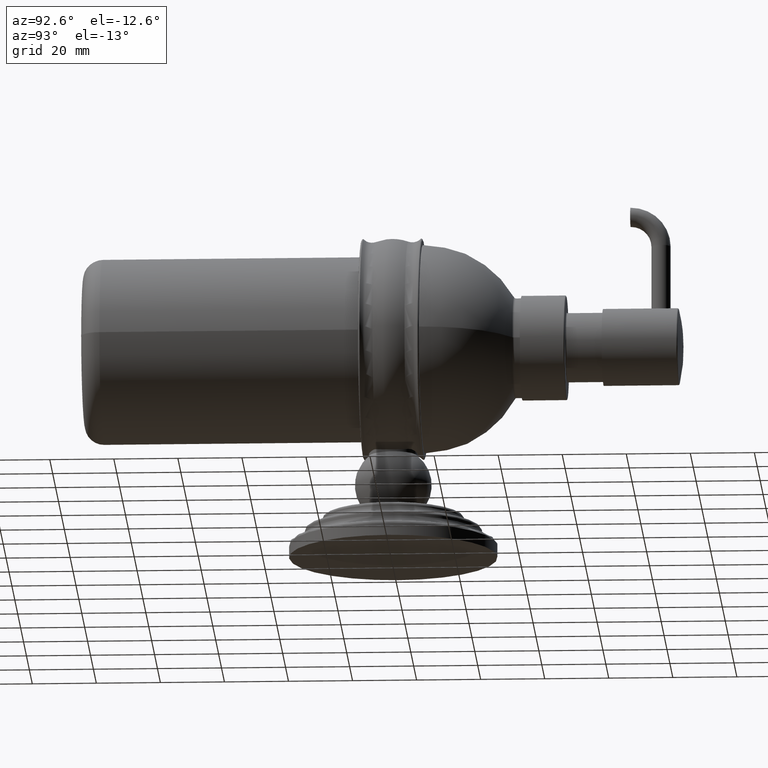
[diagram: clean part render]
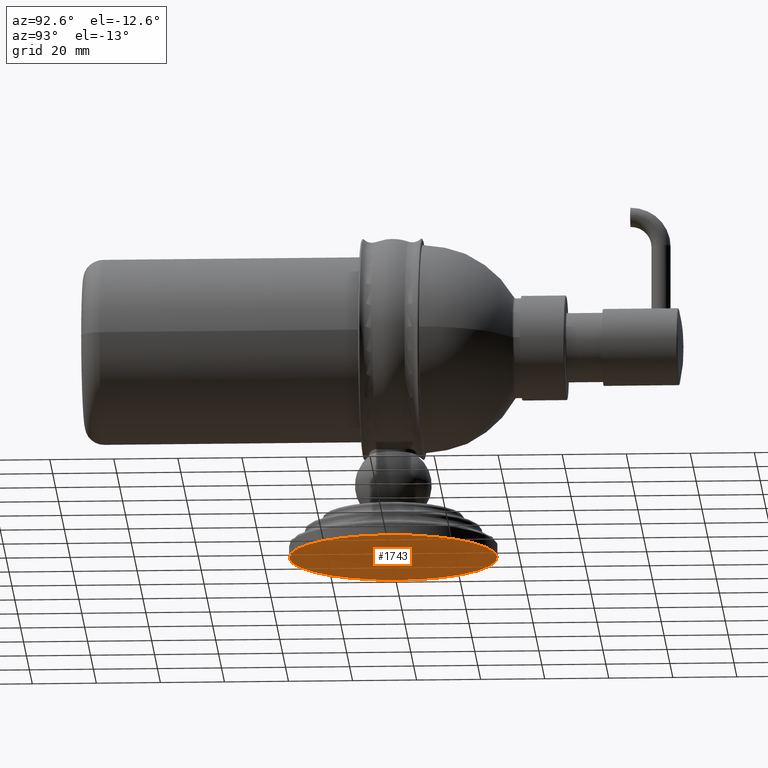
[diagram: same view with one face highlighted and labeled with its STEP entity id]
A machine part, auxiliary view. The second image highlights one B-rep face of the part: STEP entity #1743.
In plain terms, the highlighted planar face has unit normal (0, 0, 1).
Its self-contained STEP definition (entity closure, byte-faithful):
#165=CARTESIAN_POINT('',(0.E0,1.224647799147E-14,0.E0));
#166=DIRECTION('',(0.E0,0.E0,1.E0));
#167=DIRECTION('',(0.E0,1.E0,0.E0));
#168=AXIS2_PLACEMENT_3D('',#165,#166,#167);
#220=CARTESIAN_POINT('',(0.E0,1.224647799147E-14,0.E0));
#221=DIRECTION('',(0.E0,0.E0,-1.E0));
#222=DIRECTION('',(0.E0,1.E0,0.E0));
#223=AXIS2_PLACEMENT_3D('',#220,#221,#222);
#1504=CARTESIAN_POINT('',(0.E0,1.28E0,0.E0));
#1505=CARTESIAN_POINT('',(0.E0,-1.28E0,0.E0));
#1506=VERTEX_POINT('',#1504);
#1507=VERTEX_POINT('',#1505);
#1734=CARTESIAN_POINT('',(1.2405E0,1.232243670919E-14,0.E0));
#1735=DIRECTION('',(0.E0,0.E0,1.E0));
#1736=DIRECTION('',(1.E0,0.E0,0.E0));
#1737=AXIS2_PLACEMENT_3D('',#1734,#1735,#1736);
#1738=PLANE('',#1737);
#1739=ORIENTED_EDGE('',*,*,#1728,.F.);
#1740=ORIENTED_EDGE('',*,*,#1669,.T.);
#1741=EDGE_LOOP('',(#1739,#1740));
#1742=FACE_OUTER_BOUND('',#1741,.F.);
#169=CIRCLE('',#168,1.28E0);
#224=CIRCLE('',#223,1.28E0);
#1669=EDGE_CURVE('',#1506,#1507,#169,.T.);
#1728=EDGE_CURVE('',#1506,#1507,#224,.T.);
#1743=ADVANCED_FACE('',(#1742),#1738,.F.);